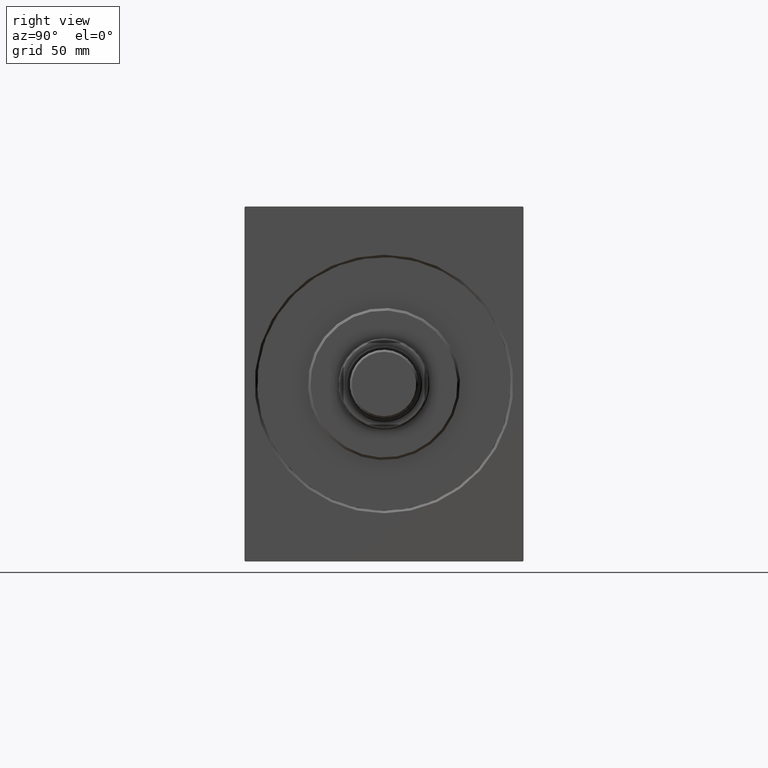
[diagram: clean part render]
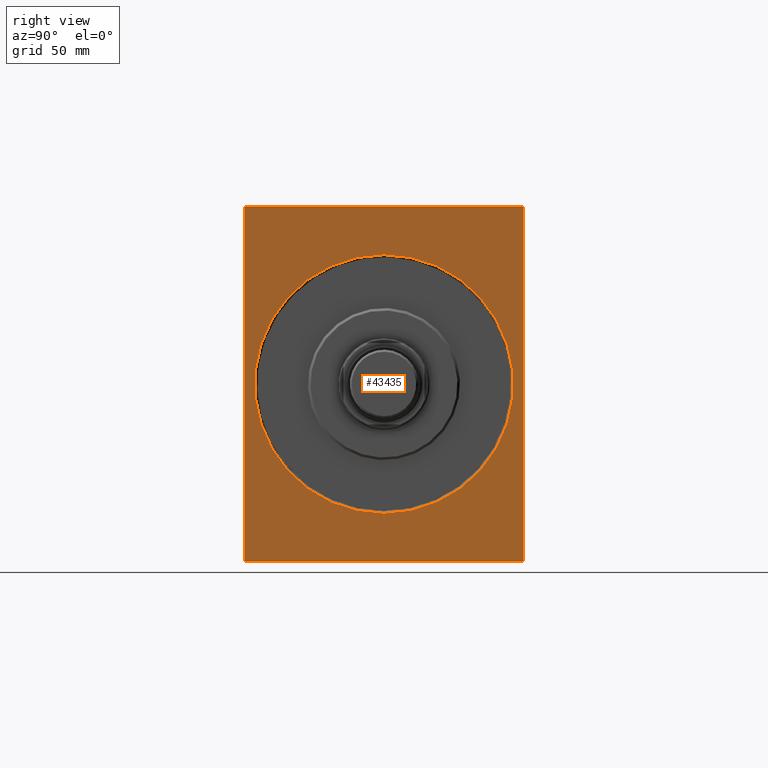
[diagram: same view with one face highlighted and labeled with its STEP entity id]
A machine part, right view. The second image highlights one B-rep face of the part: STEP entity #43435.
In plain terms, the highlighted planar face has unit normal (-1, -0, 0).
Its self-contained STEP definition (entity closure, byte-faithful):
#529 = EDGE_CURVE ( 'NONE', #4911, #1720, #37797, .T. ) ;
#629 = CIRCLE ( 'NONE', #8493, 50.99999999999993605 ) ;
#855 = CARTESIAN_POINT ( 'NONE',  ( 0.000000000000000000, -54.99999999999999289, 70.00000000000000000 ) ) ;
#875 = VERTEX_POINT ( 'NONE', #13358 ) ;
#1720 = VERTEX_POINT ( 'NONE', #33582 ) ;
#2187 = LINE ( 'NONE', #43122, #17812 ) ;
#2648 = VECTOR ( 'NONE', #13637, 1000.000000000000114 ) ;
#3038 = CARTESIAN_POINT ( 'NONE',  ( 0.000000000000000000, 0.000000000000000000, 50.99999999999993605 ) ) ;
#3187 = PLANE ( 'NONE',  #11498 ) ;
#4259 = EDGE_CURVE ( 'NONE', #4911, #16017, #2187, .T. ) ;
#4598 = CARTESIAN_POINT ( 'NONE',  ( 0.000000000000000000, 55.00000000000002132, -70.00000000000000000 ) ) ;
#4911 = VERTEX_POINT ( 'NONE', #31188 ) ;
#5551 = CARTESIAN_POINT ( 'NONE',  ( 0.000000000000000000, 0.000000000000000000, 0.000000000000000000 ) ) ;
#6556 = FACE_OUTER_BOUND ( 'NONE', #24913, .T. ) ;
#6761 = VECTOR ( 'NONE', #31894, 1000.000000000000000 ) ;
#7443 = EDGE_CURVE ( 'NONE', #40577, #16017, #38825, .T. ) ;
#8493 = AXIS2_PLACEMENT_3D ( 'NONE', #35540, #18093, #25458 ) ;
#8580 = EDGE_CURVE ( 'NONE', #32628, #11777, #26376, .T. ) ;
#9143 = ORIENTED_EDGE ( 'NONE', *, *, #529, .T. ) ;
#9461 = DIRECTION ( 'NONE',  ( 1.000000000000000000, 0.000000000000000000, 0.000000000000000000 ) ) ;
#10072 = LINE ( 'NONE', #17222, #28467 ) ;
#11498 = AXIS2_PLACEMENT_3D ( 'NONE', #20184, #9461, #23538 ) ;
#11777 = VERTEX_POINT ( 'NONE', #39710 ) ;
#11971 = DIRECTION ( 'NONE',  ( 0.000000000000000000, -0.7071067811865474617, -0.7071067811865474617 ) ) ;
#12038 = VERTEX_POINT ( 'NONE', #42126 ) ;
#12050 = ORIENTED_EDGE ( 'NONE', *, *, #12183, .T. ) ;
#12183 = EDGE_CURVE ( 'NONE', #33590, #875, #14712, .T. ) ;
#13358 = CARTESIAN_POINT ( 'NONE',  ( 0.000000000000000000, -54.69999999999997442, 70.00000000000000000 ) ) ;
#13637 = DIRECTION ( 'NONE',  ( -0.000000000000000000, -0.7071067811865474617, 0.7071067811865474617 ) ) ;
#13856 = DIRECTION ( 'NONE',  ( -0.000000000000000000, 0.7071067811865474617, -0.7071067811865474617 ) ) ;
#14668 = EDGE_CURVE ( 'NONE', #40577, #14896, #24946, .T. ) ;
#14712 = LINE ( 'NONE', #28367, #19789 ) ;
#14896 = VERTEX_POINT ( 'NONE', #31194 ) ;
#14912 = EDGE_LOOP ( 'NONE', ( #30634, #35936 ) ) ;
#16017 = VERTEX_POINT ( 'NONE', #28207 ) ;
#16262 = DIRECTION ( 'NONE',  ( 1.000000000000000000, 0.000000000000000000, 0.000000000000000000 ) ) ;
#16486 = DIRECTION ( 'NONE',  ( 0.000000000000000000, 0.000000000000000000, -1.000000000000000000 ) ) ;
#16617 = EDGE_CURVE ( 'NONE', #33590, #1720, #41365, .T. ) ;
#17000 = ORIENTED_EDGE ( 'NONE', *, *, #4259, .F. ) ;
#17222 = CARTESIAN_POINT ( 'NONE',  ( 0.000000000000000000, 54.69999999999997442, 70.00000000000000000 ) ) ;
#17612 = ORIENTED_EDGE ( 'NONE', *, *, #14668, .F. ) ;
#17812 = VECTOR ( 'NONE', #32399, 1000.000000000000000 ) ;
#18093 = DIRECTION ( 'NONE',  ( 1.000000000000000000, 0.000000000000000000, 0.000000000000000000 ) ) ;
#19789 = VECTOR ( 'NONE', #42018, 1000.000000000000114 ) ;
#20043 = CARTESIAN_POINT ( 'NONE',  ( 0.000000000000000000, -54.99999999999999289, 69.69999999999998863 ) ) ;
#20184 = CARTESIAN_POINT ( 'NONE',  ( 0.000000000000000000, 0.000000000000000000, 0.000000000000000000 ) ) ;
#20538 = ORIENTED_EDGE ( 'NONE', *, *, #7443, .T. ) ;
#22486 = VECTOR ( 'NONE', #31738, 1000.000000000000000 ) ;
#23393 = CARTESIAN_POINT ( 'NONE',  ( 0.000000000000000000, 55.00000000000002132, -69.69999999999998863 ) ) ;
#23538 = DIRECTION ( 'NONE',  ( 0.000000000000000000, 0.000000000000000000, -1.000000000000000000 ) ) ;
#24327 = VECTOR ( 'NONE', #28581, 1000.000000000000000 ) ;
#24913 = EDGE_LOOP ( 'NONE', ( #38203, #43425, #17612, #20538, #17000, #9143, #41269, #12050 ) ) ;
#24946 = LINE ( 'NONE', #4598, #6761 ) ;
#24953 = VECTOR ( 'NONE', #11971, 1000.000000000000114 ) ;
#25458 = DIRECTION ( 'NONE',  ( 0.000000000000000000, 0.000000000000000000, -1.000000000000000000 ) ) ;
#26376 = CIRCLE ( 'NONE', #29964, 50.99999999999993605 ) ;
#28207 = CARTESIAN_POINT ( 'NONE',  ( 0.000000000000000000, 54.69999999999999574, -70.00000000000000000 ) ) ;
#28367 = CARTESIAN_POINT ( 'NONE',  ( 0.000000000000000000, -54.99999999999999289, 69.69999999999998863 ) ) ;
#28467 = VECTOR ( 'NONE', #13856, 1000.000000000000114 ) ;
#28581 = DIRECTION ( 'NONE',  ( 0.000000000000000000, -1.000000000000000000, 0.000000000000000000 ) ) ;
#29964 = AXIS2_PLACEMENT_3D ( 'NONE', #5551, #16262, #16486 ) ;
#30634 = ORIENTED_EDGE ( 'NONE', *, *, #8580, .T. ) ;
#31188 = CARTESIAN_POINT ( 'NONE',  ( 0.000000000000000000, -54.69999999999997442, -70.00000000000000000 ) ) ;
#31194 = CARTESIAN_POINT ( 'NONE',  ( 0.000000000000000000, 54.99999999999999289, 69.69999999999998863 ) ) ;
#31738 = DIRECTION ( 'NONE',  ( 0.000000000000000000, 0.000000000000000000, -1.000000000000000000 ) ) ;
#31894 = DIRECTION ( 'NONE',  ( 0.000000000000000000, -1.982541115402065110E-16, 1.000000000000000000 ) ) ;
#32399 = DIRECTION ( 'NONE',  ( 0.000000000000000000, 1.000000000000000000, 0.000000000000000000 ) ) ;
#32628 = VERTEX_POINT ( 'NONE', #3038 ) ;
#32884 = EDGE_CURVE ( 'NONE', #12038, #14896, #10072, .T. ) ;
#32969 = EDGE_CURVE ( 'NONE', #11777, #32628, #629, .T. ) ;
#33582 = CARTESIAN_POINT ( 'NONE',  ( 0.000000000000000000, -54.99999999999999289, -69.69999999999998863 ) ) ;
#33590 = VERTEX_POINT ( 'NONE', #20043 ) ;
#35294 = CARTESIAN_POINT ( 'NONE',  ( 0.000000000000000000, 54.99999999999999289, 70.00000000000000000 ) ) ;
#35540 = CARTESIAN_POINT ( 'NONE',  ( 0.000000000000000000, 0.000000000000000000, 0.000000000000000000 ) ) ;
#35936 = ORIENTED_EDGE ( 'NONE', *, *, #32969, .T. ) ;
#37136 = CARTESIAN_POINT ( 'NONE',  ( 0.000000000000000000, -54.69999999999997442, -70.00000000000000000 ) ) ;
#37797 = LINE ( 'NONE', #37136, #2648 ) ;
#38203 = ORIENTED_EDGE ( 'NONE', *, *, #41838, .F. ) ;
#38213 = LINE ( 'NONE', #35294, #24327 ) ;
#38825 = LINE ( 'NONE', #42189, #24953 ) ;
#39710 = CARTESIAN_POINT ( 'NONE',  ( 0.000000000000000000, 6.245698675651492556E-15, -50.99999999999993605 ) ) ;
#40108 = FACE_BOUND ( 'NONE', #14912, .T. ) ;
#40577 = VERTEX_POINT ( 'NONE', #23393 ) ;
#41269 = ORIENTED_EDGE ( 'NONE', *, *, #16617, .F. ) ;
#41365 = LINE ( 'NONE', #855, #22486 ) ;
#41838 = EDGE_CURVE ( 'NONE', #12038, #875, #38213, .T. ) ;
#42018 = DIRECTION ( 'NONE',  ( -0.000000000000000000, 0.7071067811865474617, 0.7071067811865474617 ) ) ;
#42126 = CARTESIAN_POINT ( 'NONE',  ( 0.000000000000000000, 54.69999999999997442, 70.00000000000000000 ) ) ;
#42189 = CARTESIAN_POINT ( 'NONE',  ( 0.000000000000000000, 55.00000000000002132, -69.69999999999998863 ) ) ;
#43122 = CARTESIAN_POINT ( 'NONE',  ( 0.000000000000000000, -54.99999999999999289, -70.00000000000000000 ) ) ;
#43425 = ORIENTED_EDGE ( 'NONE', *, *, #32884, .T. ) ;
#43435 = ADVANCED_FACE ( 'NONE', ( #40108, #6556 ), #3187, .F. ) ;